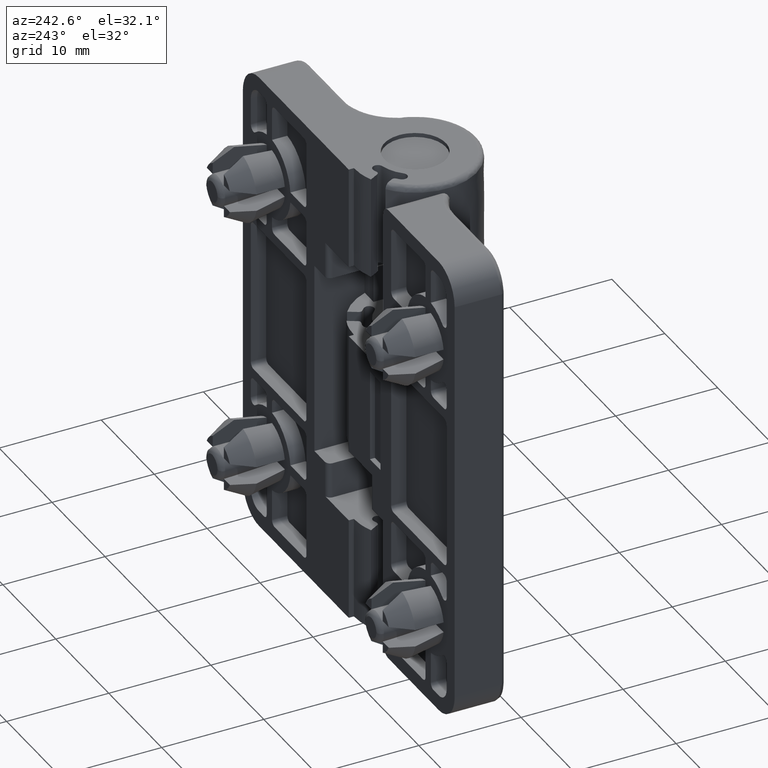
[diagram: clean part render]
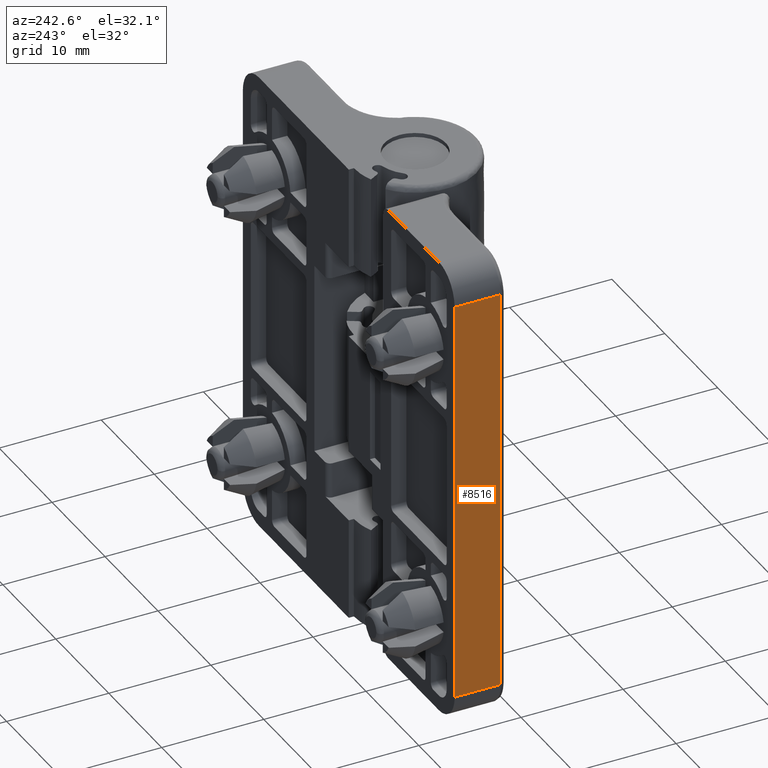
[diagram: same view with one face highlighted and labeled with its STEP entity id]
A machine part, auxiliary view. The second image highlights one B-rep face of the part: STEP entity #8516.
In plain terms, the highlighted face is a freeform B-spline surface patch.
Its self-contained STEP definition (entity closure, byte-faithful):
#8008=CARTESIAN_POINT('',(-19.999999999948500,1.999999999946415,-20.000000000001702));
#8009=VERTEX_POINT('',#8008);
#8023=CARTESIAN_POINT('',(-19.999999999960600,6.499999999946450,-20.000000000001702));
#8024=VERTEX_POINT('',#8023);
#8025=CARTESIAN_POINT('',(-19.999999999960600,6.499999999946450,-20.000000000001702));
#8026=CARTESIAN_POINT('',(-19.999999999948500,1.999999999946415,-20.000000000001702));
#8027=QUASI_UNIFORM_CURVE('',1,(#8025,#8026),.UNSPECIFIED.,.F.,.U.);
#8028=EDGE_CURVE('',#8024,#8009,#8027,.T.);
#8060=CARTESIAN_POINT('',(-19.999999999948500,1.999999999946425,19.999999999998249));
#8061=VERTEX_POINT('',#8060);
#8062=CARTESIAN_POINT('',(-19.999999999960600,6.499999999946450,19.999999999998249));
#8063=VERTEX_POINT('',#8062);
#8064=CARTESIAN_POINT('',(-19.999999999948500,1.999999999946425,19.999999999998249));
#8065=CARTESIAN_POINT('',(-19.999999999960600,6.499999999946450,19.999999999998249));
#8066=QUASI_UNIFORM_CURVE('',1,(#8064,#8065),.UNSPECIFIED.,.F.,.U.);
#8067=EDGE_CURVE('',#8061,#8063,#8066,.T.);
#8497=CARTESIAN_POINT('',(-19.999999999961190,6.724774991224580,-21.997999922473941));
#8498=CARTESIAN_POINT('',(-19.999999999947889,1.775224887968881,-21.997999922473941));
#8499=CARTESIAN_POINT('',(-19.999999999961190,6.724774991224580,21.998000995354090));
#8500=CARTESIAN_POINT('',(-19.999999999947889,1.775224887968881,21.998000995354090));
#8501=B_SPLINE_SURFACE_WITH_KNOTS('',1,1,((#8497,#8499),(#8498,#8500)),.UNSPECIFIED.,.F.,.F.,.U.,(2,2),(2,2),(0.0,4.949550103255699),(0.0,43.996000917828027),.UNSPECIFIED.);
#8502=ORIENTED_EDGE('',*,*,#8028,.T.);
#8503=CARTESIAN_POINT('',(-19.999999999948500,1.999999999946415,-20.000000000001702));
#8504=CARTESIAN_POINT('',(-19.999999999948500,1.999999999946425,19.999999999998249));
#8505=QUASI_UNIFORM_CURVE('',1,(#8503,#8504),.UNSPECIFIED.,.F.,.U.);
#8506=EDGE_CURVE('',#8009,#8061,#8505,.T.);
#8507=ORIENTED_EDGE('',*,*,#8506,.T.);
#8508=ORIENTED_EDGE('',*,*,#8067,.T.);
#8509=CARTESIAN_POINT('',(-19.999999999960600,6.499999999946450,19.999999999998249));
#8510=CARTESIAN_POINT('',(-19.999999999960600,6.499999999946450,-20.000000000001702));
#8511=QUASI_UNIFORM_CURVE('',1,(#8509,#8510),.UNSPECIFIED.,.F.,.U.);
#8512=EDGE_CURVE('',#8063,#8024,#8511,.T.);
#8513=ORIENTED_EDGE('',*,*,#8512,.T.);
#8514=EDGE_LOOP('',(#8502,#8507,#8508,#8513));
#8515=FACE_OUTER_BOUND('',#8514,.T.);
#8516=ADVANCED_FACE('',(#8515),#8501,.T.);